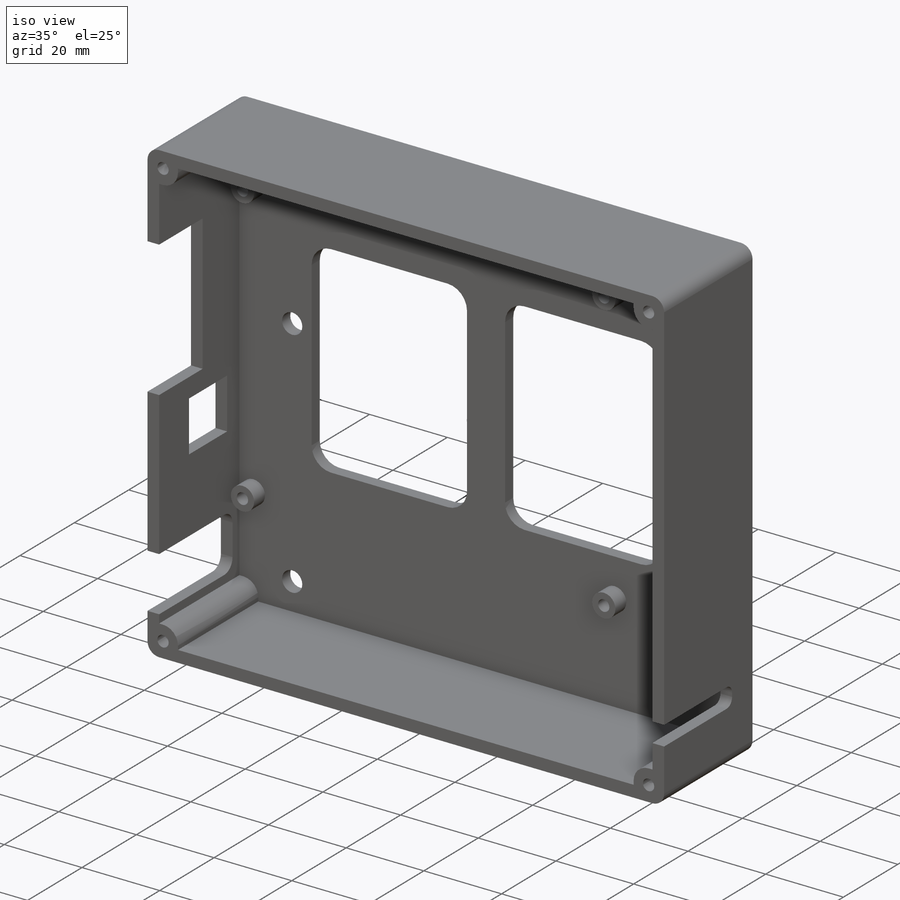
[diagram: iso view]
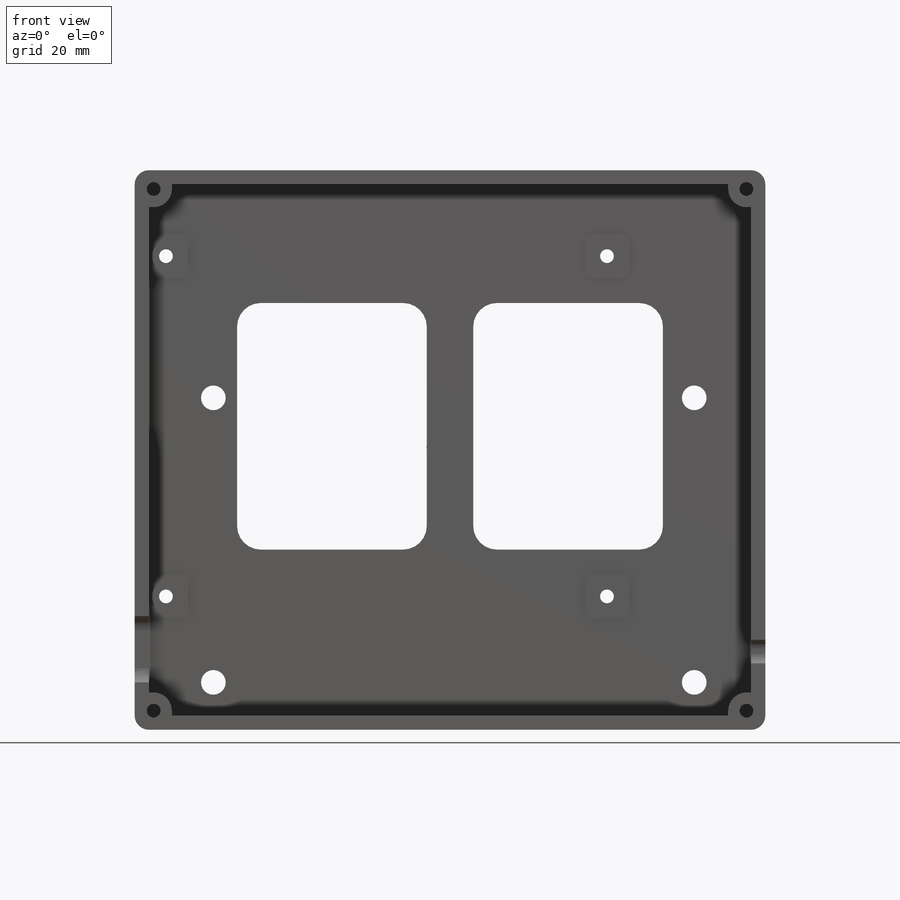
[diagram: front view]
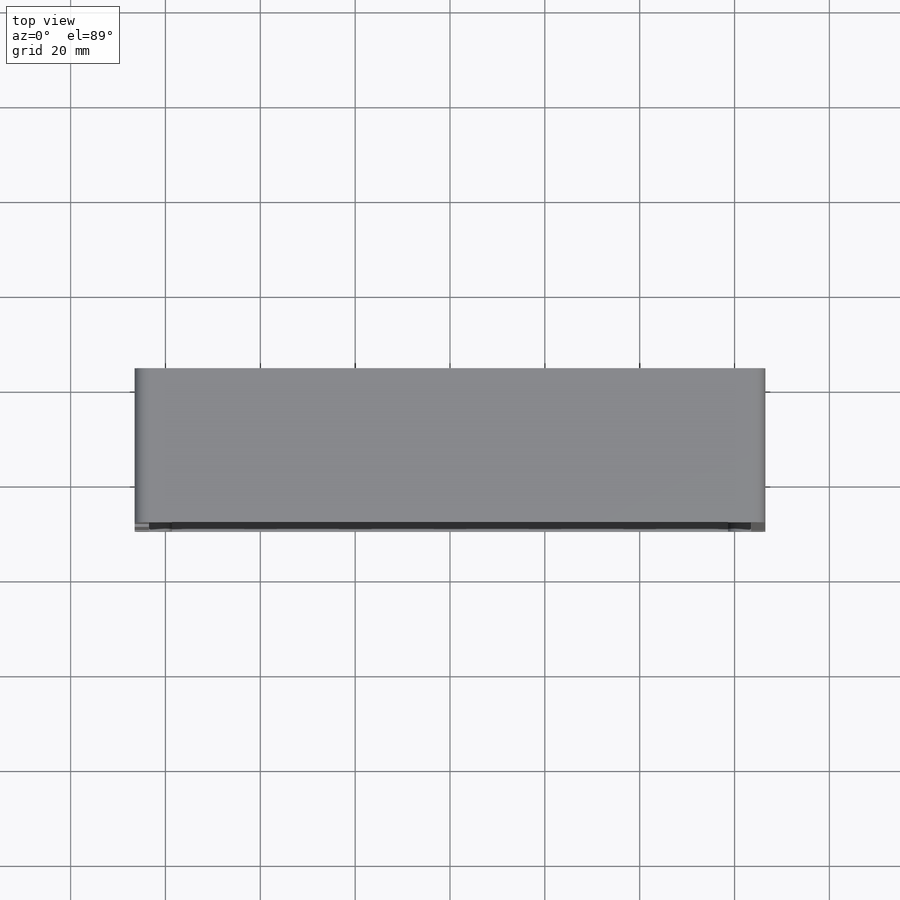
[diagram: top view]
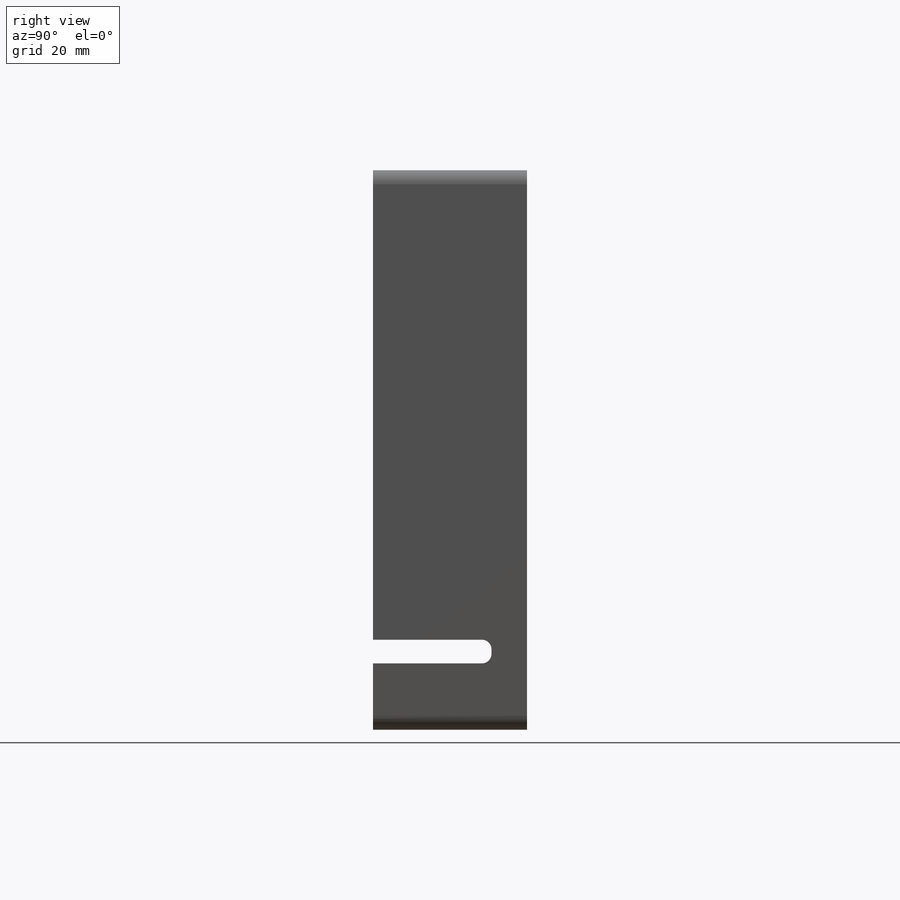
[diagram: right view]
SOLIDWORKS PART (.sldprt)
format: sldprt  version: not decoded by parser v0  size: 518,656 bytes
history: native  units: mm
features: sketch x6, extrude x3, cut_extrude x2, material x1 (+13 scaffold rows collapsed)
feature tree (25):
  scaffold x13  (default folders/planes/origin — collapsed)
  material  "ABS"
  sketch  "Sketch1"  dims[c1.D3=3.0mm c1.D5=~2.977395mm c1.D7=2.9mm c1.D8=2.9mm c1.D4=2.9mm c2.D5=2.9mm c2.D10=5.0mm c2.D13=2.9mm c2.D16=6.0mm c2.D17=2.9mm c2.D18=5.2mm c2.D19=5.2mm c2.D20=5.2mm c2.D21=5.2mm c2.D22=5.2mm c2.D23=5.2mm c3.D21=5.2mm c3.D1=133.0mm c3.D2=118.0mm c3.D5=4.0mm c3.D8=4.0mm c3.D4=125.0mm c4.D5=110.0mm c4.D8=40.0mm c4.D9=52.0mm c4.D11=9.8mm c4.D12=28.0mm c5.D11=9.8mm c5.D14=93.0mm c5.D15=71.75mm c5.D17=3.6mm c5.D18=54.0mm c5.D19=101.4mm c5.D20=60.0mm c5.D21=16.6mm c5.D22=11.0mm c5.D23=12.0mm c6.D21=10.0mm c6.D4=3.0mm c6.D6=2.4mm]
  extrude  "Boss-Extrude1"  Depth=3mm
  extrude  "Boss-Extrude2"  [1 undecoded]
  sketch  "Sketch1<3>"  dims[D1=29.5mm]
  extrude  "Boss-Extrude3"  [1 undecoded]
  sketch  "Sketch1<4>"  dims[D1=4.0mm]
  sketch  "Sketch5"  dims[c1.D7=3.0mm c1.D3=3.0mm c1.D1=13.0mm c1.D2=13.0mm c2.D3=35.0mm c2.D4=16.0mm c2.D5=14.0mm c2.D6=27.0mm c2.D1=14.0mm c2.D2=27.0mm c3.D4=13.0mm c3.D5=14.0mm c3.D6=11.0mm c3.D7=5.0mm c3.D8=16.0mm c3.D9=35.0mm c3.D10=8.0mm c3.D11=94.0mm c4.D10=10.0mm c4.D11=22.0mm]
  cut_extrude  "Cut-Extrude2"  [1 undecoded]
  sketch  "Lid Model For Reference"  dims[D5=36.0mm D7=3.2mm D8=5.0mm D17=3.0mm D18=3.2mm D1=133.0mm D2=118.0mm D3=54.0mm D4=61.0mm D6=32.0mm D9=28.0mm D10=10.75mm D11=10.0mm D12=33.0mm D13=35.0mm D14=16.0mm D15=18.0mm D16=13.0mm D19=125.0mm D20=110.0mm]
  sketch  "Sketch6"  dims[D2=2.0mm D1=5.0mm D3=25.0mm D4=4.0mm]
  cut_extrude  "Cut-Extrude3"  [1 undecoded]
decode coverage: 7 of 11 modeling features carry decoded parameters
note: ~ marks probable driven/reference dimensions
note: 4 parameter values undecoded
summary: no parameter record found for 4 features
note: suppression state not decoded; provenance and decode notes live in map.json
